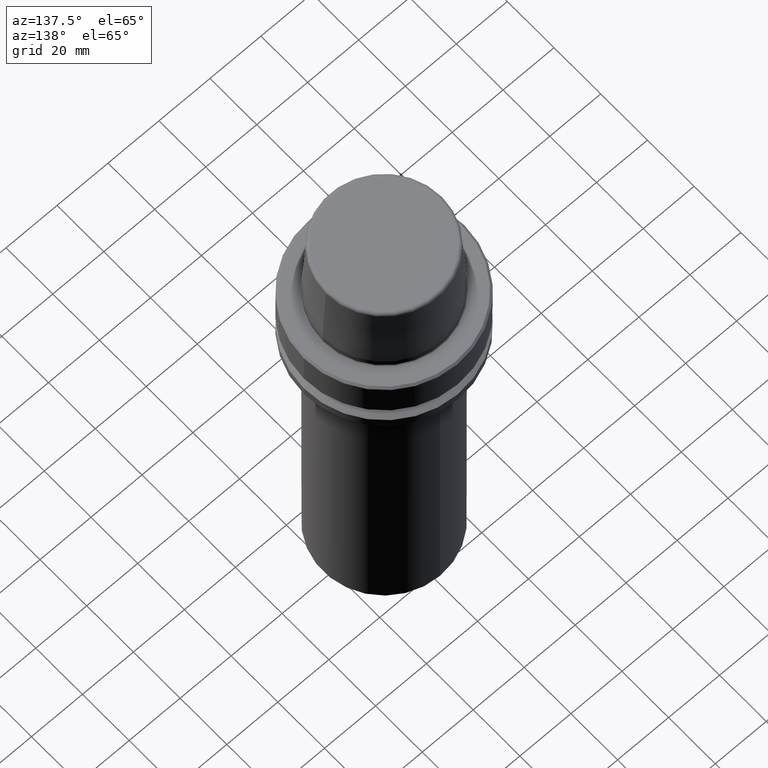
[diagram: clean part render]
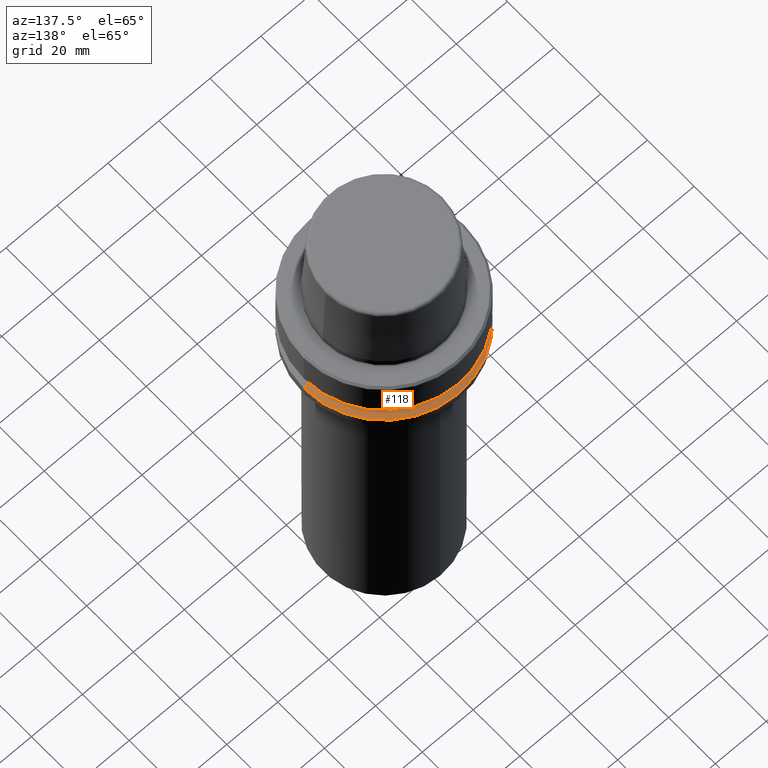
[diagram: same view with one face highlighted and labeled with its STEP entity id]
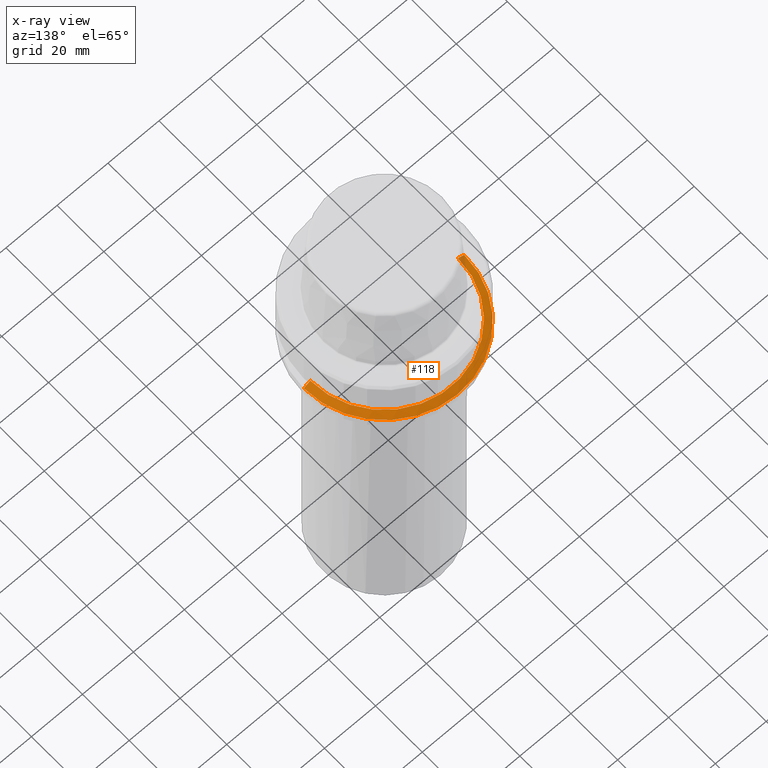
[diagram: x-ray of the same camera — body ghosted, the highlighted face saturated]
A machine part, auxiliary view. The second image highlights one B-rep face of the part: STEP entity #118.
The next image is the same camera in x-ray: the body ghosted, the highlighted face saturated — about 2% of this face is hidden behind the body in this view.
In plain terms, the highlighted conical surface has half-angle 60 deg.
Its self-contained STEP definition (entity closure, byte-faithful):
#4 = FACE_OUTER_BOUND ( 'NONE', #1277, .T. ) ;
#17 = CARTESIAN_POINT ( 'NONE',  ( 28.94089653438085100, 3.700937523921292900E-015, -19.90000000000001600 ) ) ;
#41 = CARTESIAN_POINT ( 'NONE',  ( 31.50000000000000000, 3.857637417314162700E-015, -21.37749907475931700 ) ) ;
#56 = CIRCLE ( 'NONE', #166, 28.94089653438085100 ) ;
#59 = CARTESIAN_POINT ( 'NONE',  ( -31.50000000000000000, 0.0000000000000000000, -21.37749907475931700 ) ) ;
#60 = DIRECTION ( 'NONE',  ( 1.000000000000000000, 0.0000000000000000000, 0.0000000000000000000 ) ) ;
#86 = DIRECTION ( 'NONE',  ( 1.000000000000000000, 0.0000000000000000000, 0.0000000000000000000 ) ) ;
#118 = ADVANCED_FACE ( 'NONE', ( #4 ), #1269, .T. ) ;
#166 = AXIS2_PLACEMENT_3D ( 'NONE', #1237, #637, #60 ) ;
#201 = VERTEX_POINT ( 'NONE', #1176 ) ;
#283 = DIRECTION ( 'NONE',  ( -0.0000000000000000000, -0.0000000000000000000, 1.000000000000000000 ) ) ;
#286 = VERTEX_POINT ( 'NONE', #17 ) ;
#307 = LINE ( 'NONE', #41, #717 ) ;
#387 = VECTOR ( 'NONE', #448, 1000.000000000000100 ) ;
#448 = DIRECTION ( 'NONE',  ( -0.8660254037844410400, 0.0000000000000000000, -0.4999999999999958400 ) ) ;
#464 = AXIS2_PLACEMENT_3D ( 'NONE', #1160, #283, #86 ) ;
#485 = DIRECTION ( 'NONE',  ( 0.0000000000000000000, 0.0000000000000000000, -1.000000000000000000 ) ) ;
#503 = EDGE_CURVE ( 'NONE', #201, #1032, #1150, .T. ) ;
#576 = ORIENTED_EDGE ( 'NONE', *, *, #704, .F. ) ;
#583 = DIRECTION ( 'NONE',  ( -1.000000000000000000, 0.0000000000000000000, 0.0000000000000000000 ) ) ;
#622 = DIRECTION ( 'NONE',  ( 0.8660254037844410400, 1.060575238724909700E-016, -0.4999999999999958400 ) ) ;
#635 = CARTESIAN_POINT ( 'NONE',  ( -31.50000000000000000, 3.857637417314162700E-015, -21.37749907475931700 ) ) ;
#637 = DIRECTION ( 'NONE',  ( -0.0000000000000000000, -0.0000000000000000000, 1.000000000000000000 ) ) ;
#666 = EDGE_CURVE ( 'NONE', #286, #201, #307, .T. ) ;
#704 = EDGE_CURVE ( 'NONE', #286, #1276, #56, .T. ) ;
#717 = VECTOR ( 'NONE', #622, 1000.000000000000100 ) ;
#780 = ORIENTED_EDGE ( 'NONE', *, *, #503, .T. ) ;
#839 = EDGE_CURVE ( 'NONE', #1276, #1032, #1275, .T. ) ;
#975 = ORIENTED_EDGE ( 'NONE', *, *, #839, .F. ) ;
#979 = AXIS2_PLACEMENT_3D ( 'NONE', #1274, #485, #583 ) ;
#992 = ORIENTED_EDGE ( 'NONE', *, *, #666, .T. ) ;
#1032 = VERTEX_POINT ( 'NONE', #635 ) ;
#1150 = CIRCLE ( 'NONE', #464, 31.50000000000000000 ) ;
#1160 = CARTESIAN_POINT ( 'NONE',  ( 0.0000000000000000000, 0.0000000000000000000, -21.37749907475931700 ) ) ;
#1176 = CARTESIAN_POINT ( 'NONE',  ( 31.50000000000000000, 0.0000000000000000000, -21.37749907475931700 ) ) ;
#1237 = CARTESIAN_POINT ( 'NONE',  ( 0.0000000000000000000, 0.0000000000000000000, -19.90000000000001600 ) ) ;
#1250 = CARTESIAN_POINT ( 'NONE',  ( -28.94089653438085100, 0.0000000000000000000, -19.90000000000001600 ) ) ;
#1269 = CONICAL_SURFACE ( 'NONE', #979, 31.50000000000000000, 1.047197551196602500 ) ;
#1274 = CARTESIAN_POINT ( 'NONE',  ( 0.0000000000000000000, 0.0000000000000000000, -21.37749907475931700 ) ) ;
#1275 = LINE ( 'NONE', #59, #387 ) ;
#1276 = VERTEX_POINT ( 'NONE', #1250 ) ;
#1277 = EDGE_LOOP ( 'NONE', ( #576, #992, #780, #975 ) ) ;